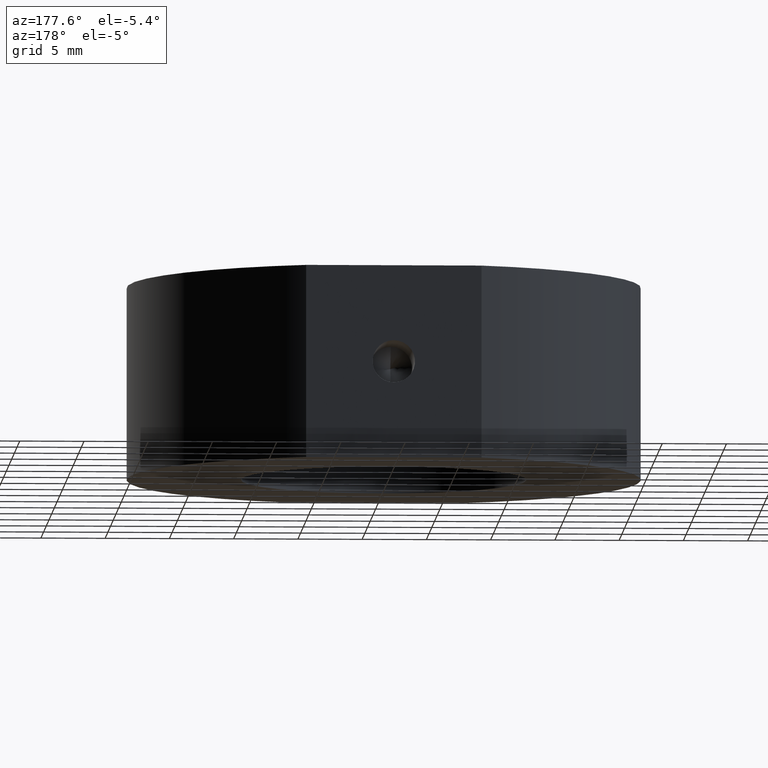
[diagram: clean part render]
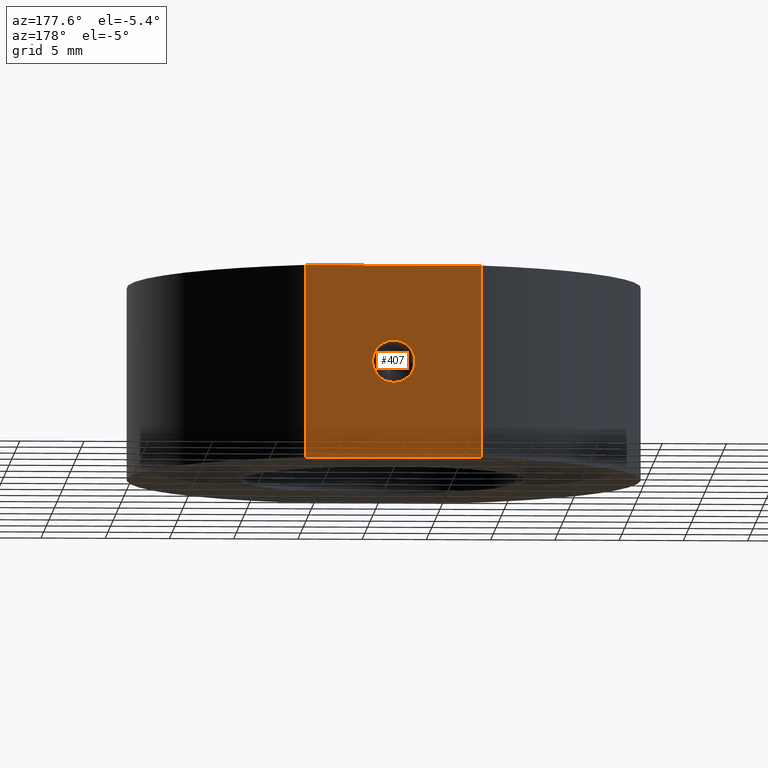
[diagram: same view with one face highlighted and labeled with its STEP entity id]
A machine part, auxiliary view. The second image highlights one B-rep face of the part: STEP entity #407.
In plain terms, the highlighted planar face has unit normal (0, -1, 0).
Its self-contained STEP definition (entity closure, byte-faithful):
#51 = VECTOR ( 'NONE', #815, 1000.000000000000000 ) ;
#92 = CARTESIAN_POINT ( 'NONE',  ( -6.823488843692808300, 18.79999999999999400, -31.93906810035839800 ) ) ;
#111 = VECTOR ( 'NONE', #397, 1000.000000000000000 ) ;
#112 = PLANE ( 'NONE',  #366 ) ;
#131 = LINE ( 'NONE', #220, #51 ) ;
#149 = DIRECTION ( 'NONE',  ( -0.0000000000000000000, 1.000000000000000000, -0.0000000000000000000 ) ) ;
#166 = ORIENTED_EDGE ( 'NONE', *, *, #401, .T. ) ;
#181 = VERTEX_POINT ( 'NONE', #233 ) ;
#214 = EDGE_LOOP ( 'NONE', ( #166, #887, #411, #907 ) ) ;
#220 = CARTESIAN_POINT ( 'NONE',  ( 6.823488843692808300, 18.79999999999999400, -31.93906810035839800 ) ) ;
#233 = CARTESIAN_POINT ( 'NONE',  ( -6.823488843692788700, 18.80000000000000100, 7.500000000000000000 ) ) ;
#238 = ORIENTED_EDGE ( 'NONE', *, *, #505, .F. ) ;
#248 = VERTEX_POINT ( 'NONE', #310 ) ;
#255 = CIRCLE ( 'NONE', #346, 1.649999999999989900 ) ;
#293 = VERTEX_POINT ( 'NONE', #353 ) ;
#310 = CARTESIAN_POINT ( 'NONE',  ( -6.823488843692790500, 18.80000000000000100, -7.499999999999999100 ) ) ;
#346 = AXIS2_PLACEMENT_3D ( 'NONE', #456, #758, #619 ) ;
#353 = CARTESIAN_POINT ( 'NONE',  ( 6.823488843692795800, 18.80000000000000100, -7.500000000000000900 ) ) ;
#363 = CIRCLE ( 'NONE', #830, 1.649999999999989900 ) ;
#366 = AXIS2_PLACEMENT_3D ( 'NONE', #649, #572, #737 ) ;
#371 = EDGE_CURVE ( 'NONE', #248, #293, #792, .T. ) ;
#385 = CARTESIAN_POINT ( 'NONE',  ( 6.071532165918824800E-015, 18.80000000000000100, 0.0000000000000000000 ) ) ;
#387 = FACE_OUTER_BOUND ( 'NONE', #214, .T. ) ;
#397 = DIRECTION ( 'NONE',  ( 1.000000000000000000, 0.0000000000000000000, -1.224646799147350500E-016 ) ) ;
#401 = EDGE_CURVE ( 'NONE', #181, #409, #491, .T. ) ;
#407 = ADVANCED_FACE ( 'NONE', ( #547, #387 ), #112, .F. ) ;
#409 = VERTEX_POINT ( 'NONE', #843 ) ;
#411 = ORIENTED_EDGE ( 'NONE', *, *, #371, .F. ) ;
#456 = CARTESIAN_POINT ( 'NONE',  ( 6.071532165918824800E-015, 18.80000000000000100, 0.0000000000000000000 ) ) ;
#491 = LINE ( 'NONE', #904, #943 ) ;
#497 = VERTEX_POINT ( 'NONE', #750 ) ;
#505 = EDGE_CURVE ( 'NONE', #497, #609, #255, .T. ) ;
#546 = LINE ( 'NONE', #92, #644 ) ;
#547 = FACE_BOUND ( 'NONE', #721, .T. ) ;
#572 = DIRECTION ( 'NONE',  ( 0.0000000000000000000, -1.000000000000000000, 0.0000000000000000000 ) ) ;
#578 = EDGE_CURVE ( 'NONE', #609, #497, #363, .T. ) ;
#608 = EDGE_CURVE ( 'NONE', #293, #409, #131, .T. ) ;
#609 = VERTEX_POINT ( 'NONE', #613 ) ;
#613 = CARTESIAN_POINT ( 'NONE',  ( 6.071532165918824800E-015, 18.80000000000000100, 1.649999999999989900 ) ) ;
#619 = DIRECTION ( 'NONE',  ( 0.0000000000000000000, 0.0000000000000000000, 1.000000000000000000 ) ) ;
#644 = VECTOR ( 'NONE', #659, 1000.000000000000000 ) ;
#649 = CARTESIAN_POINT ( 'NONE',  ( -33.15197265346817100, 18.80000000000000100, -41.50000000000002100 ) ) ;
#659 = DIRECTION ( 'NONE',  ( -1.224646799147350500E-016, -0.0000000000000000000, -1.000000000000000000 ) ) ;
#674 = ORIENTED_EDGE ( 'NONE', *, *, #578, .F. ) ;
#695 = DIRECTION ( 'NONE',  ( 1.000000000000000000, 0.0000000000000000000, 0.0000000000000000000 ) ) ;
#721 = EDGE_LOOP ( 'NONE', ( #674, #238 ) ) ;
#737 = DIRECTION ( 'NONE',  ( 0.0000000000000000000, -0.0000000000000000000, -1.000000000000000000 ) ) ;
#750 = CARTESIAN_POINT ( 'NONE',  ( 6.273598887778137200E-015, 18.80000000000000100, -1.649999999999989900 ) ) ;
#752 = DIRECTION ( 'NONE',  ( 0.0000000000000000000, 0.0000000000000000000, 1.000000000000000000 ) ) ;
#758 = DIRECTION ( 'NONE',  ( -0.0000000000000000000, 1.000000000000000000, -0.0000000000000000000 ) ) ;
#792 = LINE ( 'NONE', #896, #111 ) ;
#807 = EDGE_CURVE ( 'NONE', #181, #248, #546, .T. ) ;
#815 = DIRECTION ( 'NONE',  ( 1.224646799147350500E-016, 0.0000000000000000000, 1.000000000000000000 ) ) ;
#830 = AXIS2_PLACEMENT_3D ( 'NONE', #385, #149, #752 ) ;
#843 = CARTESIAN_POINT ( 'NONE',  ( 6.823488843692798500, 18.80000000000000100, 7.500000000000000000 ) ) ;
#887 = ORIENTED_EDGE ( 'NONE', *, *, #608, .F. ) ;
#896 = CARTESIAN_POINT ( 'NONE',  ( 11.10000000000000300, 18.80000000000000100, -7.500000000000004400 ) ) ;
#904 = CARTESIAN_POINT ( 'NONE',  ( -33.15197265346817100, 18.80000000000000100, 7.499999999999998200 ) ) ;
#907 = ORIENTED_EDGE ( 'NONE', *, *, #807, .F. ) ;
#943 = VECTOR ( 'NONE', #695, 1000.000000000000000 ) ;